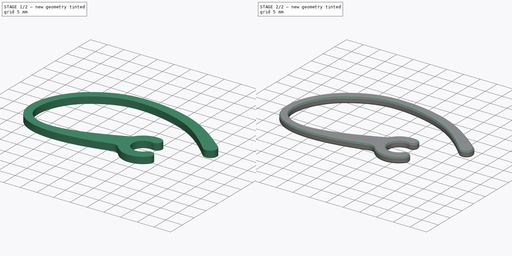
[diagram: build sequence overview — one tinted view per stage of 2, left to right]
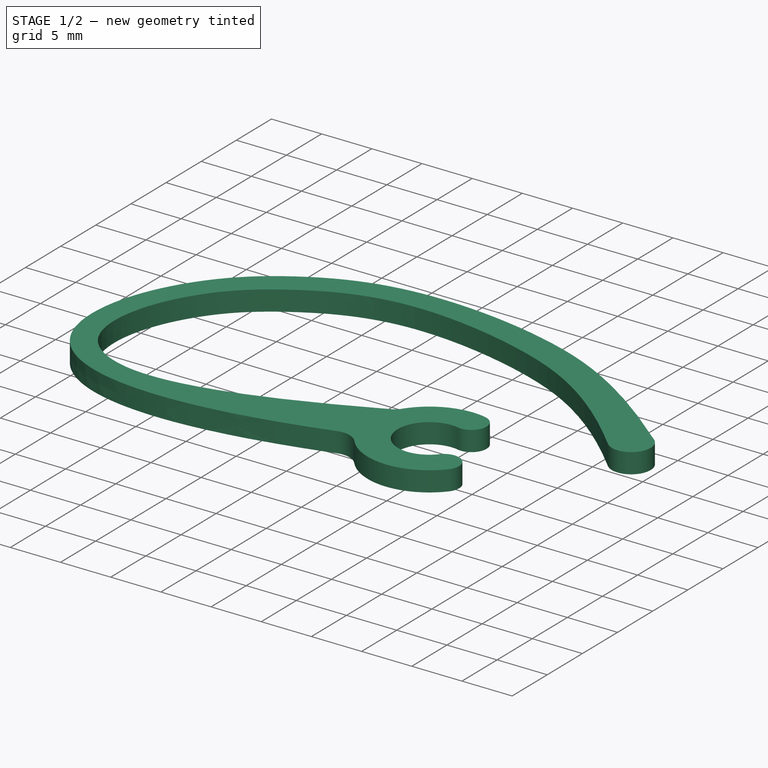
[diagram: stage 1 of 2 — iso view after this stage's code; geometry added in this stage tinted green]
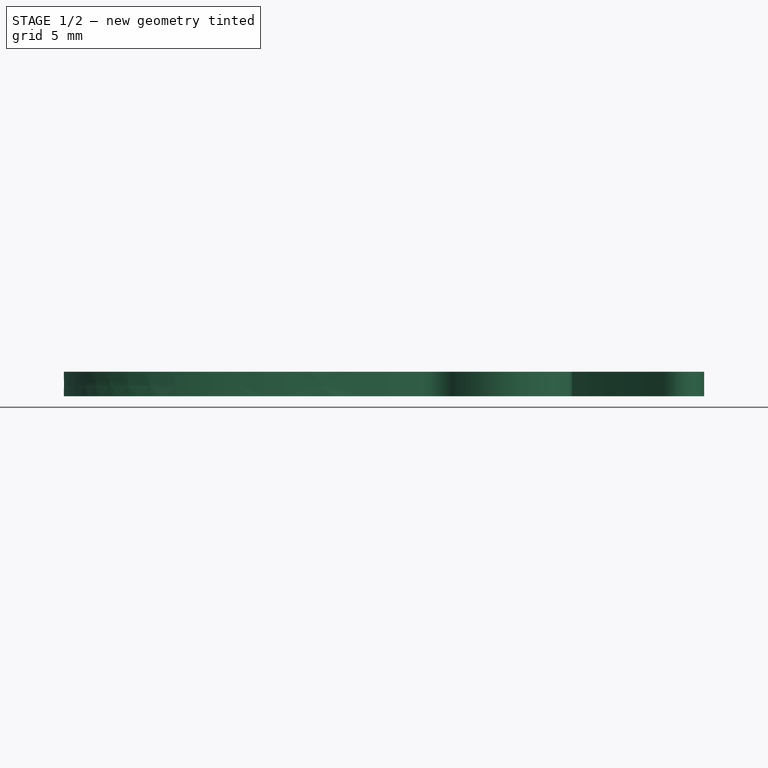
[diagram: stage 1 of 2 — front view after this stage's code; geometry added in this stage tinted green]
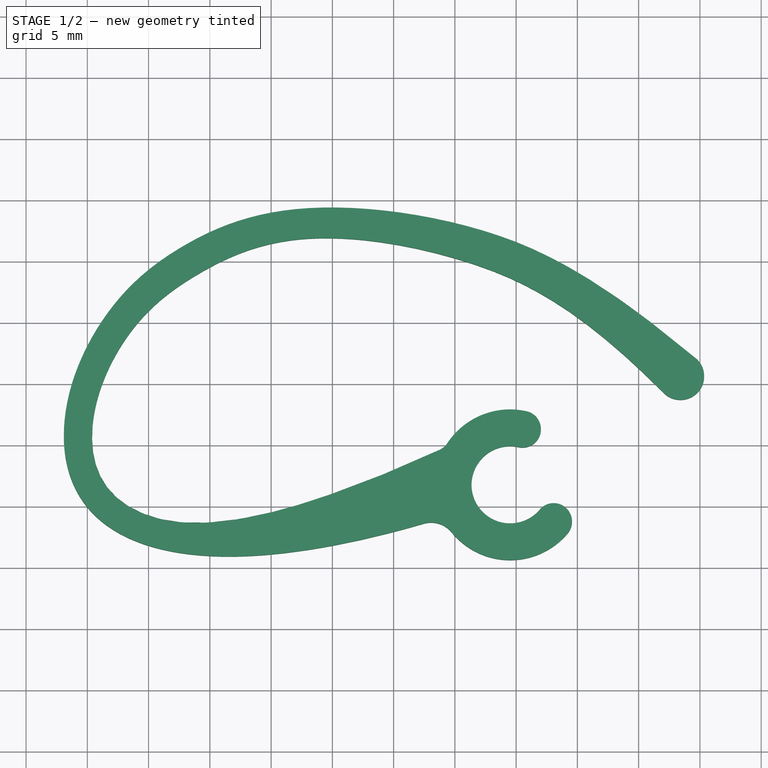
[diagram: stage 1 of 2 — top view after this stage's code; geometry added in this stage tinted green]
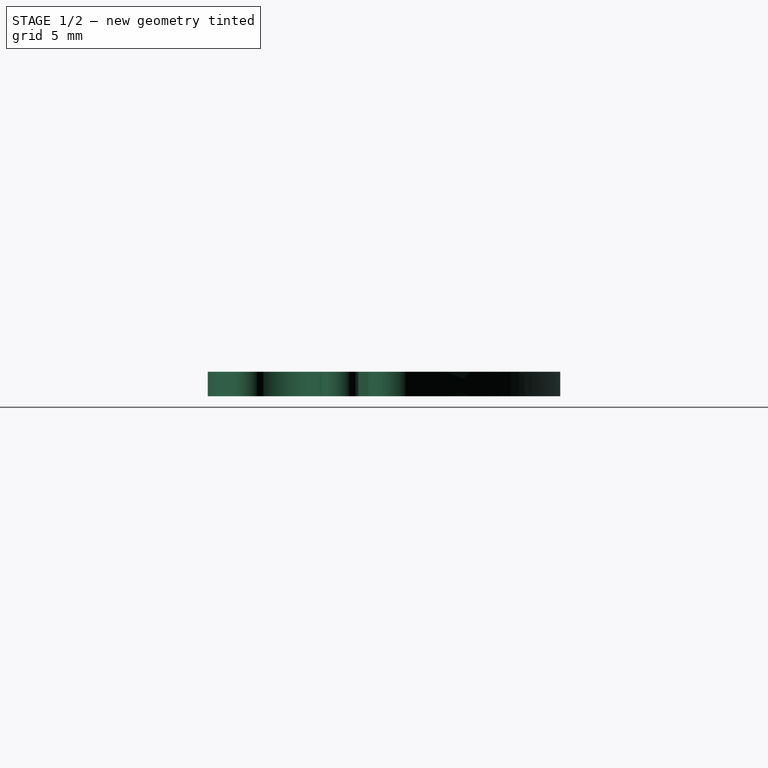
[diagram: stage 1 of 2 — right view after this stage's code; geometry added in this stage tinted green]
FCSTD DOCUMENT  (FreeCAD 0.18R16093 (Git))
Label: plantronics
License: All rights reserved
LicenseURL: http://en.wikipedia.org/wiki/All_rights_reserved
objects: Image::ImagePlane×1, Sketcher::SketchObject×1, PartDesign::Pad×1, PartDesign::Body×1, Part::Fillet×1
note: 5 computed .brp shape members not serialized (recipe doc carries the construction recipe); baked Part::Feature solids carry a one-line shape summary decoded from their .brp

FEATURE [Image::ImagePlane] ImagePlane
  Placement = pos=(0,0,-2) rot=(0,0,1;0rad)
  XSize = 115.086
  YSize = 36.1144
  expr: YSize = 391 / 10.8267
  expr: XSize = 1246 / 10.8267
FEATURE [Sketcher::SketchObject] Sketch
  MapMode = 5
  Support = -> [XY_Plane]
  expr: Constraints[0] = 6.3 / 2
  sketch-geometry (50):
    g0: ArcOfCircle CenterX=4.50945 CenterY=-8.22405 CenterZ=0 NormalX=0 NormalY=0 NormalZ=1 AngleXU=0 Radius=3.15 StartAngle=1.35088 EndAngle=5.5825
    g1: LineSegment [constr] StartX=4.50945 StartY=-8.22405 StartZ=0 EndX=6.69091 EndY=1.53511 EndZ=0
    g2: LineSegment [constr] StartX=4.50945 StartY=-8.22405 StartZ=0 EndX=12.1534 EndY=-14.6715 EndZ=0
    g3: ArcOfCircle CenterX=5.52383 CenterY=-3.68604 CenterZ=0 NormalX=0 NormalY=0 NormalZ=1 AngleXU=0 Radius=1.5 StartAngle=4.49247 EndAngle=7.63407
    g4: ArcOfCircle CenterX=8.0639 CenterY=-11.2221 CenterZ=0 NormalX=0 NormalY=0 NormalZ=1 AngleXU=0 Radius=1.5 StartAngle=5.5825 EndAngle=8.72409
    g5-g14: Circle [constr] x10 (B-spline internal-alignment scaffolding for g15; pole/knot coordinates omitted)
    g15: BSplineCurve PolesCount=10 KnotsCount=8 Degree=3 IsPeriodic=0
    g16: GeomPoint [constr] X=-1.22173 Y=-5.35697 Z=0
    g17: GeomPoint [constr] X=-25.4989 Y=-10.5436 Z=0
    g18: GeomPoint [constr] X=-29.6038 Y=-3.44752 Z=0
    g19-g23: GeomPoint [constr] x5 (B-spline internal-alignment scaffolding for g15; pole/knot coordinates omitted)
    g24: ArcOfCircle CenterX=4.50945 CenterY=-8.22405 CenterZ=0 NormalX=0 NormalY=0 NormalZ=1 AngleXU=0 Radius=6.15 StartAngle=1.35088 EndAngle=2.55462
    g25: ArcOfCircle CenterX=-1.92736 CenterY=-3.94245 CenterZ=0 NormalX=0 NormalY=0 NormalZ=1 AngleXU=0 Radius=1.58076 StartAngle=5.17511 EndAngle=5.69622
    g26: LineSegment [constr] StartX=-12.2726 StartY=11.8414 StartZ=0 EndX=-12.2726 EndY=15.7819 EndZ=0
    g27: ArcOfCircle CenterX=18.4152 CenterY=0.638744 CenterZ=0 NormalX=0 NormalY=0 NormalZ=1 AngleXU=0 Radius=1.93226 StartAngle=3.93933 EndAngle=7.08092
    g28: LineSegment [constr] StartX=17.0659 StartY=-0.744321 StartZ=0 EndX=19.7646 EndY=2.02181 EndZ=0
    g29-g34: Circle [constr] x6 (B-spline internal-alignment scaffolding for g39; pole/knot coordinates omitted)
    g35: Circle [constr] CenterX=-33.2394 CenterY=-3.30987 CenterZ=0 NormalX=0 NormalY=0 NormalZ=1 AngleXU=0 Radius=2
    g36: Circle [constr] CenterX=-29.8353 CenterY=-14.1618 CenterZ=0 NormalX=0 NormalY=0 NormalZ=1 AngleXU=0 Radius=2
    g37: Circle [constr] CenterX=-14.9129 CenterY=-14.9625 CenterZ=0 NormalX=0 NormalY=0 NormalZ=1 AngleXU=0 Radius=2
    g38: Circle [constr] CenterX=-2.66836 CenterY=-11.4376 CenterZ=0 NormalX=0 NormalY=0 NormalZ=1 AngleXU=0 Radius=2
    g39: BSplineCurve PolesCount=10 KnotsCount=8 Degree=3 IsPeriodic=0
    g40-g47: GeomPoint [constr] x8 (B-spline internal-alignment scaffolding for g39; pole/knot coordinates omitted)
    g48: ArcOfCircle CenterX=4.50945 CenterY=-8.22405 CenterZ=0 NormalX=0 NormalY=0 NormalZ=1 AngleXU=0 Radius=6.15 StartAngle=3.82562 EndAngle=5.5825
    g49: ArcOfCircle CenterX=-1.93926 CenterY=-13.482 CenterZ=0 NormalX=0 NormalY=0 NormalZ=1 AngleXU=0 Radius=2.17056 StartAngle=0.68403 EndAngle=1.91336
  constraints (45):
    c: Radius(g0) = 3.15
    c: Coincident(g1,g0)
    c: PointOnObject(g0,g1)
    c: Coincident(g2,g0)
    c: PointOnObject(g0,g2)
    c: Distance(g1) = 10
    c: Distance(g2) = 10
    c: DistanceX(g0) = 4.50945
    c: DistanceY(g0) = -8.22405
    c: PointOnObject(g3,g1)
    c: PointOnObject(g3,g1)
    c: Coincident(g3,g0)
    c: Distance(g3,g0) = 3
    c: PointOnObject(g4,g2)
    c: Coincident(g4,g0)
    c: PointOnObject(g4,g2)
    c: Distance(g4,g0) = 3
    c: Radius(g5) = 2
    c: Equal(g5, g6-g14) x9
    c: InternalAlignment(g5-g14 -> g15) x10
    c: InternalAlignment(g16,g15)
    c: InternalAlignment(g17,g15)
    c: InternalAlignment(g19-g23 -> g15) x5
    c: Coincident(g24,g0)
    c: Coincident(g24,g3)
    c: Coincident(g25,g15)
    c: Tangent(g25,g24) = 1.5708
    c: Coincident(g26,g21)
    c: Vertical(g26)
    c: Coincident(g27,g15)
    c: Coincident(g28,g15)
    c: Coincident(g28,g27)
    c: PointOnObject(g27,g28)
    c: Coincident(g39,g27)
    c: Radius(g29) = 2
    c: Equal(g29, g30-g38) x9
    c: InternalAlignment(g29-g34 -> g39) x6
    c: InternalAlignment(g36,g39)
    c: InternalAlignment(g37,g39)
    c: InternalAlignment(g38,g39)
    c: InternalAlignment(g40-g47 -> g39) x8
    c: Coincident(g48,g0)
    c: Coincident(g48,g4)
    c: Coincident(g49,g39)
    c: Tangent(g49,g48) = 1.5708
FEATURE [PartDesign::Pad] Pad
  Length = 2
  Length2 = 100
  Profile = -> Sketch
  Type = 0
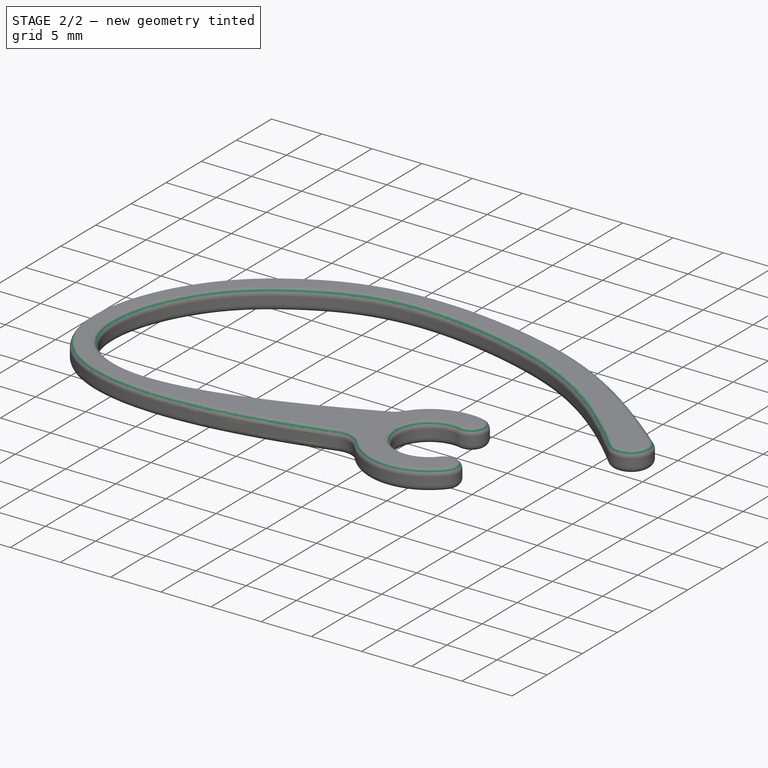
[diagram: stage 2 of 2 — iso view after this stage's code; geometry added in this stage tinted green]
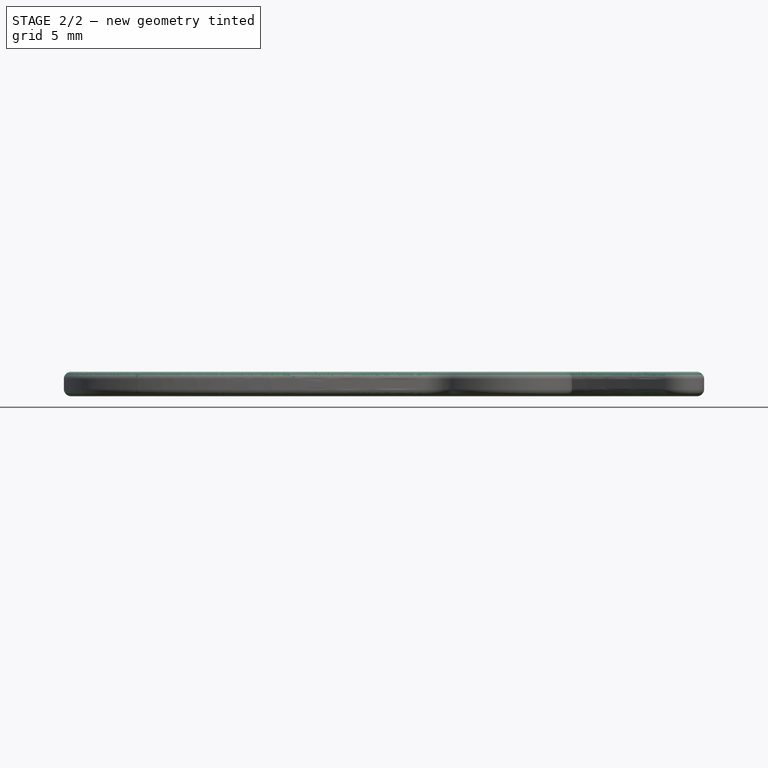
[diagram: stage 2 of 2 — front view after this stage's code; geometry added in this stage tinted green]
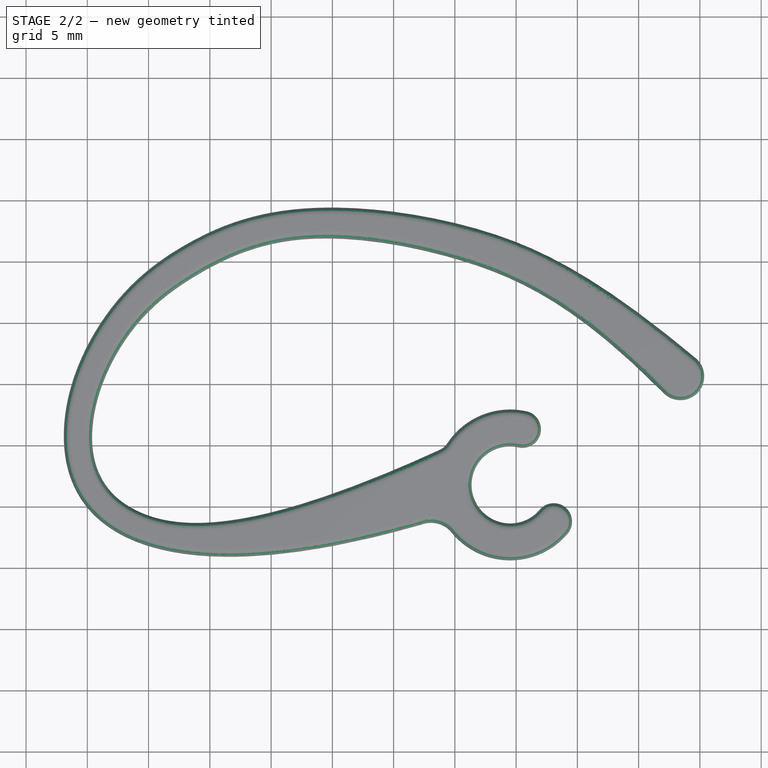
[diagram: stage 2 of 2 — top view after this stage's code; geometry added in this stage tinted green]
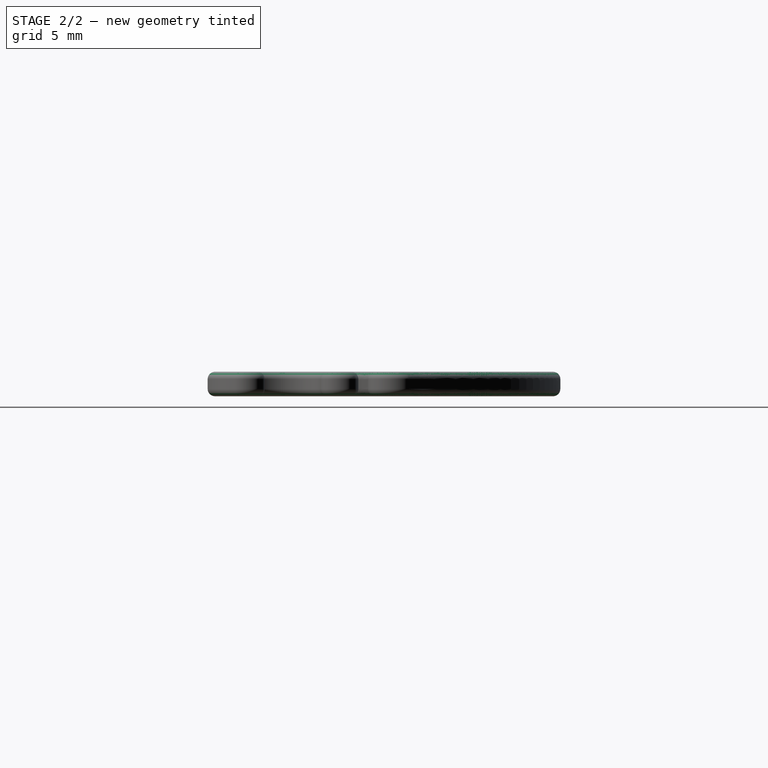
[diagram: stage 2 of 2 — right view after this stage's code; geometry added in this stage tinted green]
FEATURE [PartDesign::Body] Body
  Group = -> [Sketch,Pad]
  Origin = -> Origin
  Tip = -> Pad
FEATURE [Part::Fillet] Fillet  label="headsetclip"
  Base = -> Pad
  Edges = 20 edges r=0.6: [Edge3,Edge4,Edge6,Edge7,Edge9,Edge10,Edge12,Edge13,Edge15,Edge16,Edge18,Edge19,Edge21,Edge22,Edge24,Edge25,Edge27,Edge28,Edge29,Edge30]
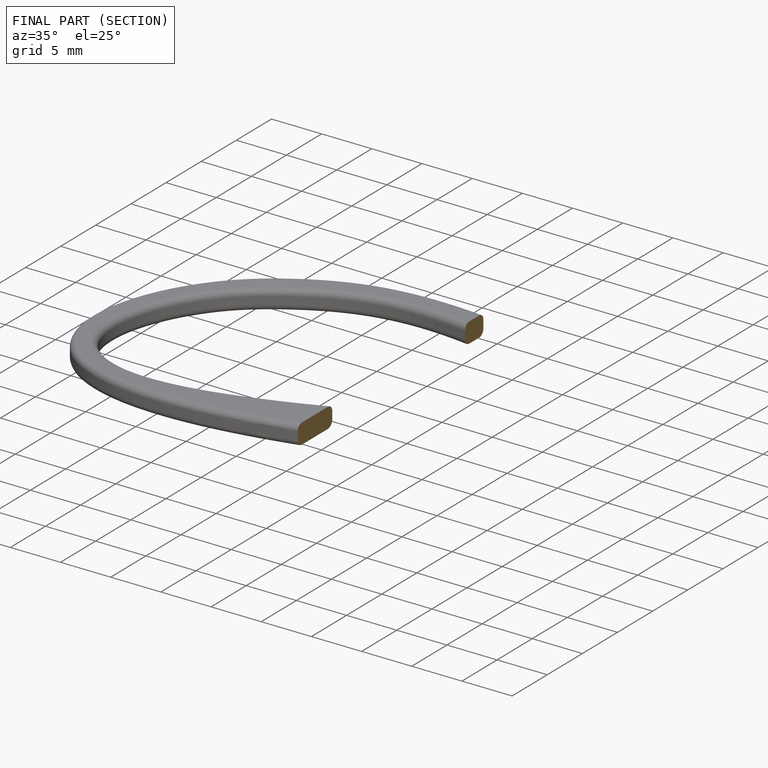
[diagram: finished part — half-section view (interior)]
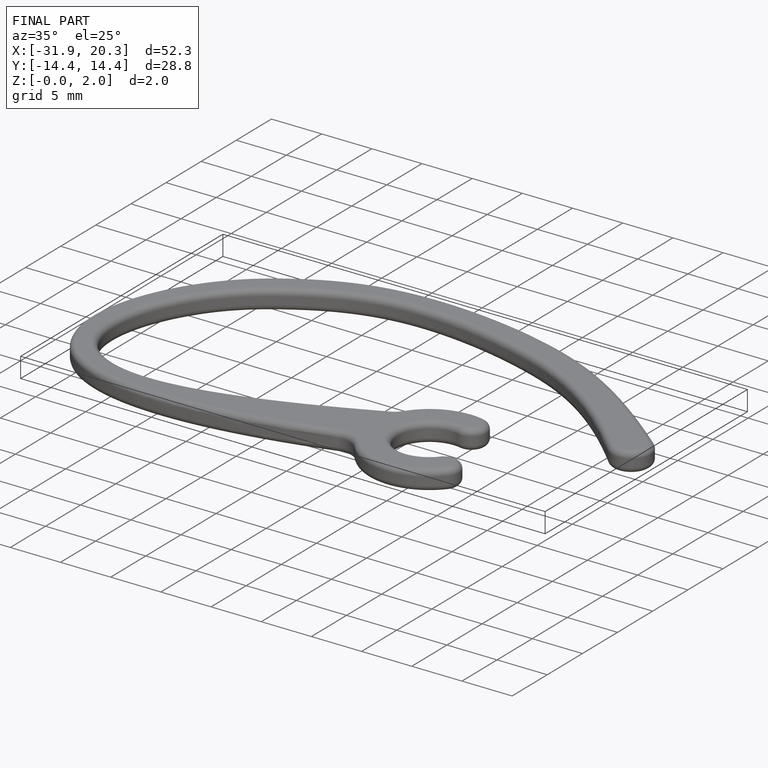
[diagram: finished part — iso view with bounding-box wireframe]
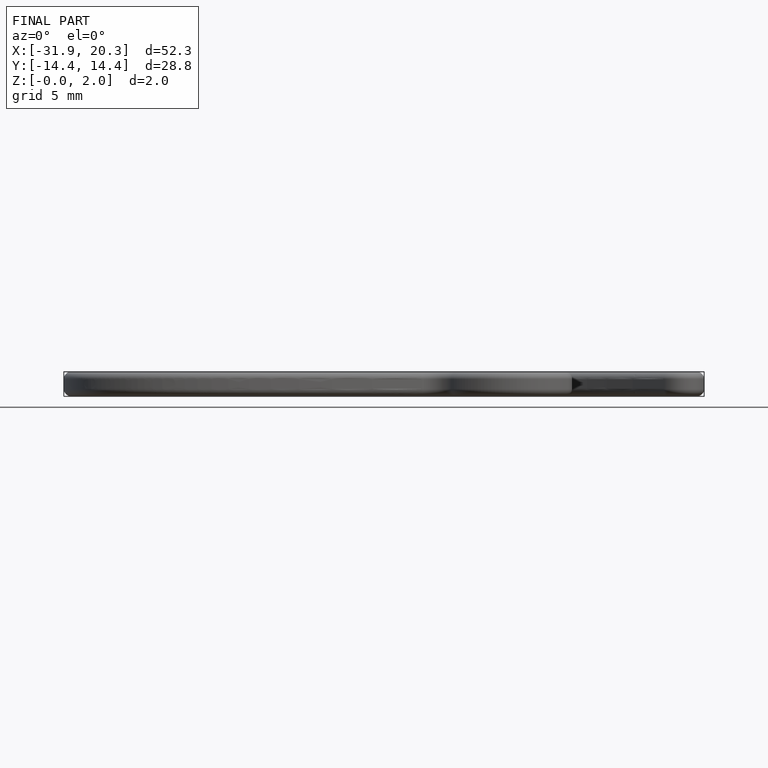
[diagram: finished part — front view with bounding-box wireframe]
